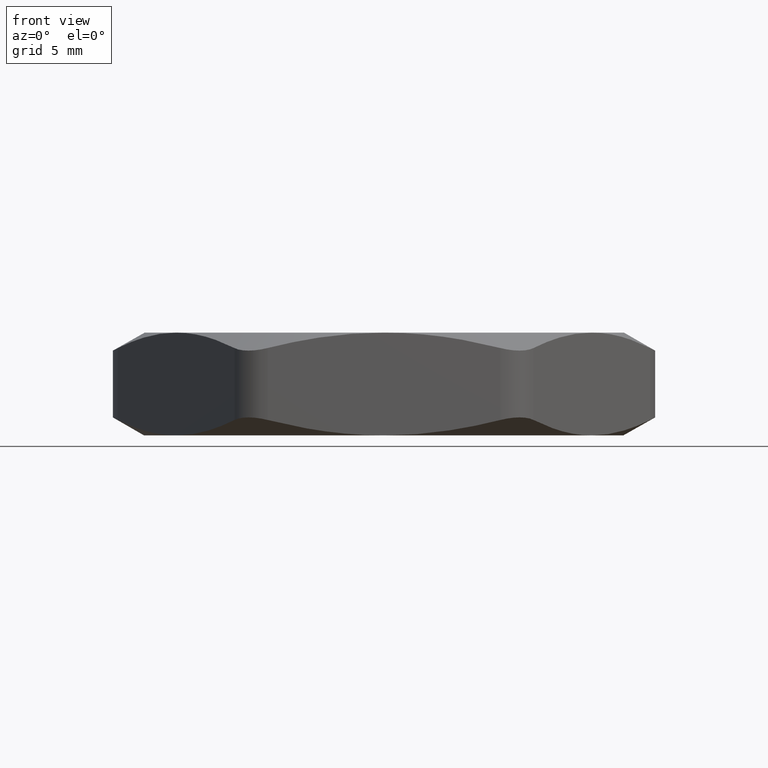
[diagram: clean part render]
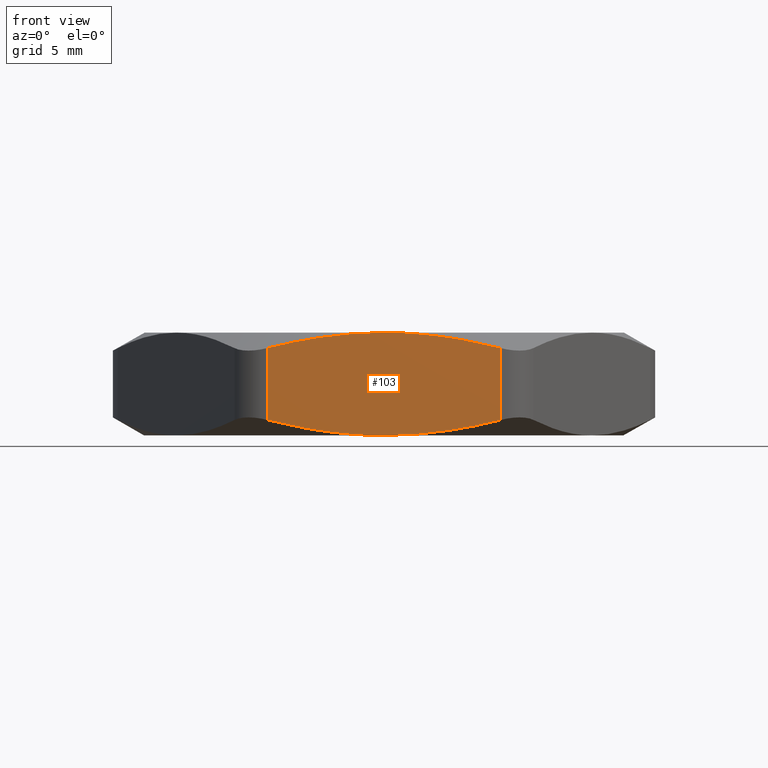
[diagram: same view with one face highlighted and labeled with its STEP entity id]
A machine part, front view. The second image highlights one B-rep face of the part: STEP entity #103.
In plain terms, the highlighted planar face has unit normal (-0, 1, 0).
Its self-contained STEP definition (entity closure, byte-faithful):
#2 = ORIENTED_EDGE ( 'NONE', *, *, #12, .F. ) ;
#12 = EDGE_CURVE ( 'NONE', #20, #13, #889, .T. ) ;
#13 = VERTEX_POINT ( 'NONE', #888 ) ;
#14 = VERTEX_POINT ( 'NONE', #887 ) ;
#15 = VERTEX_POINT ( 'NONE', #886 ) ;
#16 = ORIENTED_EDGE ( 'NONE', *, *, #19, .T. ) ;
#17 = ORIENTED_EDGE ( 'NONE', *, *, #123, .F. ) ;
#18 = ORIENTED_EDGE ( 'NONE', *, *, #23, .T. ) ;
#19 = EDGE_CURVE ( 'NONE', #20, #14, #917, .T. ) ;
#20 = VERTEX_POINT ( 'NONE', #913 ) ;
#21 = VERTEX_POINT ( 'NONE', #912 ) ;
#22 = EDGE_CURVE ( 'NONE', #15, #1045, #911, .T. ) ;
#23 = EDGE_CURVE ( 'NONE', #15, #21, #910, .T. ) ;
#92 = EDGE_CURVE ( 'NONE', #13, #21, #1238, .T. ) ;
#97 = ORIENTED_EDGE ( 'NONE', *, *, #92, .F. ) ;
#99 = ORIENTED_EDGE ( 'NONE', *, *, #22, .F. ) ;
#102 = EDGE_LOOP ( 'NONE', ( #99, #18, #97, #2, #16, #17 ) ) ;
#103 = ADVANCED_FACE ( 'NONE', ( #1191 ), #1090, .F. ) ;
#123 = EDGE_CURVE ( 'NONE', #1045, #14, #1266, .T. ) ;
#885 = CARTESIAN_POINT ( 'NONE',  ( -0.3059956426705025500, -0.6299999999999997800, 0.2293655980129110400 ) ) ;
#886 = CARTESIAN_POINT ( 'NONE',  ( 0.3059956426705017200, -0.6299999999999996700, 0.04063440198708866100 ) ) ;
#887 = CARTESIAN_POINT ( 'NONE',  ( -0.3059956426705022800, -0.6299999999999997800, 0.04063440198708889700 ) ) ;
#888 = CARTESIAN_POINT ( 'NONE',  ( 1.182924880895400300E-016, -0.6299999999999996700, 0.2700000000000000200 ) ) ;
#889 = B_SPLINE_CURVE_WITH_KNOTS ( 'NONE', 3,
 ( #885, #922, #921, #920, #919, #918 ),
 .UNSPECIFIED., .F., .F.,
 ( 4, 2, 4 ),
 ( 0.01883800869498127000, 0.02276047326844534200, 0.02668293784190941400 ),
 .UNSPECIFIED. ) ;
#907 = CARTESIAN_POINT ( 'NONE',  ( 0.3059956426705017200, -0.6299999999999996700, 0.04063440198708866100 ) ) ;
#908 = VECTOR ( 'NONE', #1078, 39.37007874015748100 ) ;
#909 = CARTESIAN_POINT ( 'NONE',  ( 0.3059956426705016700, -0.6299999999999996700, 0.2700000000000000200 ) ) ;
#910 = LINE ( 'NONE', #909, #908 ) ;
#911 = B_SPLINE_CURVE_WITH_KNOTS ( 'NONE', 3,
 ( #907, #1085, #1084, #1083, #1082, #1081, #1080, #1079 ),
 .UNSPECIFIED., .F., .F.,
 ( 4, 2, 2, 4 ),
 ( 0.04672902150023194200, 0.05064689328706820100, 0.05260582918048633400, 0.05456476507390446700 ),
 .UNSPECIFIED. ) ;
#912 = CARTESIAN_POINT ( 'NONE',  ( 0.3059956426705017800, -0.6299999999999996700, 0.2293655980129113700 ) ) ;
#913 = CARTESIAN_POINT ( 'NONE',  ( -0.3059956426705025500, -0.6299999999999997800, 0.2293655980129110400 ) ) ;
#914 = DIRECTION ( 'NONE',  ( 0.0000000000000000000, 0.0000000000000000000, -1.000000000000000000 ) ) ;
#915 = VECTOR ( 'NONE', #914, 39.37007874015748100 ) ;
#916 = CARTESIAN_POINT ( 'NONE',  ( -0.3059956426705018300, -0.6299999999999997800, 0.2700000000000000200 ) ) ;
#917 = LINE ( 'NONE', #916, #915 ) ;
#918 = CARTESIAN_POINT ( 'NONE',  ( 1.182924880895400300E-016, -0.6299999999999996700, 0.2700000000000000200 ) ) ;
#919 = CARTESIAN_POINT ( 'NONE',  ( -0.05163251629689835600, -0.6299999999999997800, 0.2700000000000002400 ) ) ;
#920 = CARTESIAN_POINT ( 'NONE',  ( -0.1029190851108284400, -0.6299999999999997800, 0.2662892405279294100 ) ) ;
#921 = CARTESIAN_POINT ( 'NONE',  ( -0.2048817292483186800, -0.6299999999999997800, 0.2523193446955120400 ) ) ;
#922 = CARTESIAN_POINT ( 'NONE',  ( -0.2556498168185278300, -0.6299999999999996700, 0.2420650161214766000 ) ) ;
#1045 = VERTEX_POINT ( 'NONE', #2092 ) ;
#1078 = DIRECTION ( 'NONE',  ( -0.0000000000000000000, -0.0000000000000000000, 1.000000000000000000 ) ) ;
#1079 = CARTESIAN_POINT ( 'NONE',  ( 1.182924880895401300E-016, -0.6300000000000001200, 0.0000000000000000000 ) ) ;
#1080 = CARTESIAN_POINT ( 'NONE',  ( 0.02579200222124228600, -0.6299999999999997800, -1.994195678968785800E-016 ) ) ;
#1081 = CARTESIAN_POINT ( 'NONE',  ( 0.05166957935136119000, -0.6299999999999996700, 0.0009179078308665548400 ) ) ;
#1082 = CARTESIAN_POINT ( 'NONE',  ( 0.1035954062706916500, -0.6299999999999997800, 0.004584420975691187200 ) ) ;
#1083 = CARTESIAN_POINT ( 'NONE',  ( 0.1293692025201566300, -0.6299999999999997800, 0.007313265423383262700 ) ) ;
#1084 = CARTESIAN_POINT ( 'NONE',  ( 0.2060195863822907600, -0.6299999999999996700, 0.01788070700900876500 ) ) ;
#1085 = CARTESIAN_POINT ( 'NONE',  ( 0.2563047715763589500, -0.6299999999999996700, 0.02810019209928715400 ) ) ;
#1090 = PLANE ( 'NONE',  #1189 ) ;
#1189 = AXIS2_PLACEMENT_3D ( 'NONE', #1246, #1245, #1244 ) ;
#1191 = FACE_OUTER_BOUND ( 'NONE', #102, .T. ) ;
#1192 = CARTESIAN_POINT ( 'NONE',  ( 0.3059956426705017800, -0.6299999999999996700, 0.2293655980129113700 ) ) ;
#1193 = CARTESIAN_POINT ( 'NONE',  ( 0.2563047715763590600, -0.6299999999999997800, 0.2418998079007128300 ) ) ;
#1234 = CARTESIAN_POINT ( 'NONE',  ( 0.02579200222124238300, -0.6299999999999996700, 0.2700000000000001800 ) ) ;
#1235 = CARTESIAN_POINT ( 'NONE',  ( 1.182924880895400300E-016, -0.6299999999999996700, 0.2700000000000000200 ) ) ;
#1238 = B_SPLINE_CURVE_WITH_KNOTS ( 'NONE', 3,
 ( #1235, #1234, #1273, #1272, #1271, #1270, #1193, #1192 ),
 .UNSPECIFIED., .F., .F.,
 ( 4, 2, 2, 4 ),
 ( 0.02668293784190941400, 0.02864232743295296700, 0.03060171702399651700, 0.03452049620608362000 ),
 .UNSPECIFIED. ) ;
#1244 = DIRECTION ( 'NONE',  ( -1.000000000000000000, -1.877658541103811000E-016, 0.0000000000000000000 ) ) ;
#1245 = DIRECTION ( 'NONE',  ( -1.877658541103811000E-016, 1.000000000000000000, 0.0000000000000000000 ) ) ;
#1246 = CARTESIAN_POINT ( 'NONE',  ( -0.3637306695894644300, -0.6299999999999997800, 0.2700000000000000200 ) ) ;
#1258 = CARTESIAN_POINT ( 'NONE',  ( -0.3059956426705022800, -0.6299999999999997800, 0.04063440198708889700 ) ) ;
#1259 = CARTESIAN_POINT ( 'NONE',  ( -0.2556498168185278900, -0.6299999999999997800, 0.02793498387852336200 ) ) ;
#1260 = CARTESIAN_POINT ( 'NONE',  ( -0.2048817292483184600, -0.6299999999999996700, 0.01768065530448803500 ) ) ;
#1261 = CARTESIAN_POINT ( 'NONE',  ( -0.1029190851108283100, -0.6300000000000000000, 0.003710759472070608000 ) ) ;
#1262 = CARTESIAN_POINT ( 'NONE',  ( -0.05163251629689844000, -0.6299999999999995600, -1.917829322700582600E-016 ) ) ;
#1263 = CARTESIAN_POINT ( 'NONE',  ( 1.182924880895401300E-016, -0.6300000000000001200, 0.0000000000000000000 ) ) ;
#1266 = B_SPLINE_CURVE_WITH_KNOTS ( 'NONE', 3,
 ( #1263, #1262, #1261, #1260, #1259, #1258 ),
 .UNSPECIFIED., .F., .F.,
 ( 4, 2, 4 ),
 ( 0.05456476507390446700, 0.05848632139876350200, 0.06240787772362254400 ),
 .UNSPECIFIED. ) ;
#1270 = CARTESIAN_POINT ( 'NONE',  ( 0.2060195863822907900, -0.6299999999999996700, 0.2521192929909912800 ) ) ;
#1271 = CARTESIAN_POINT ( 'NONE',  ( 0.1293692025201566300, -0.6299999999999997800, 0.2626867345766166800 ) ) ;
#1272 = CARTESIAN_POINT ( 'NONE',  ( 0.1035954062706917900, -0.6299999999999996700, 0.2654155790243088500 ) ) ;
#1273 = CARTESIAN_POINT ( 'NONE',  ( 0.05166957935136131500, -0.6299999999999997800, 0.2690820921691335400 ) ) ;
#2092 = CARTESIAN_POINT ( 'NONE',  ( 1.182924880895401300E-016, -0.6300000000000001200, 0.0000000000000000000 ) ) ;